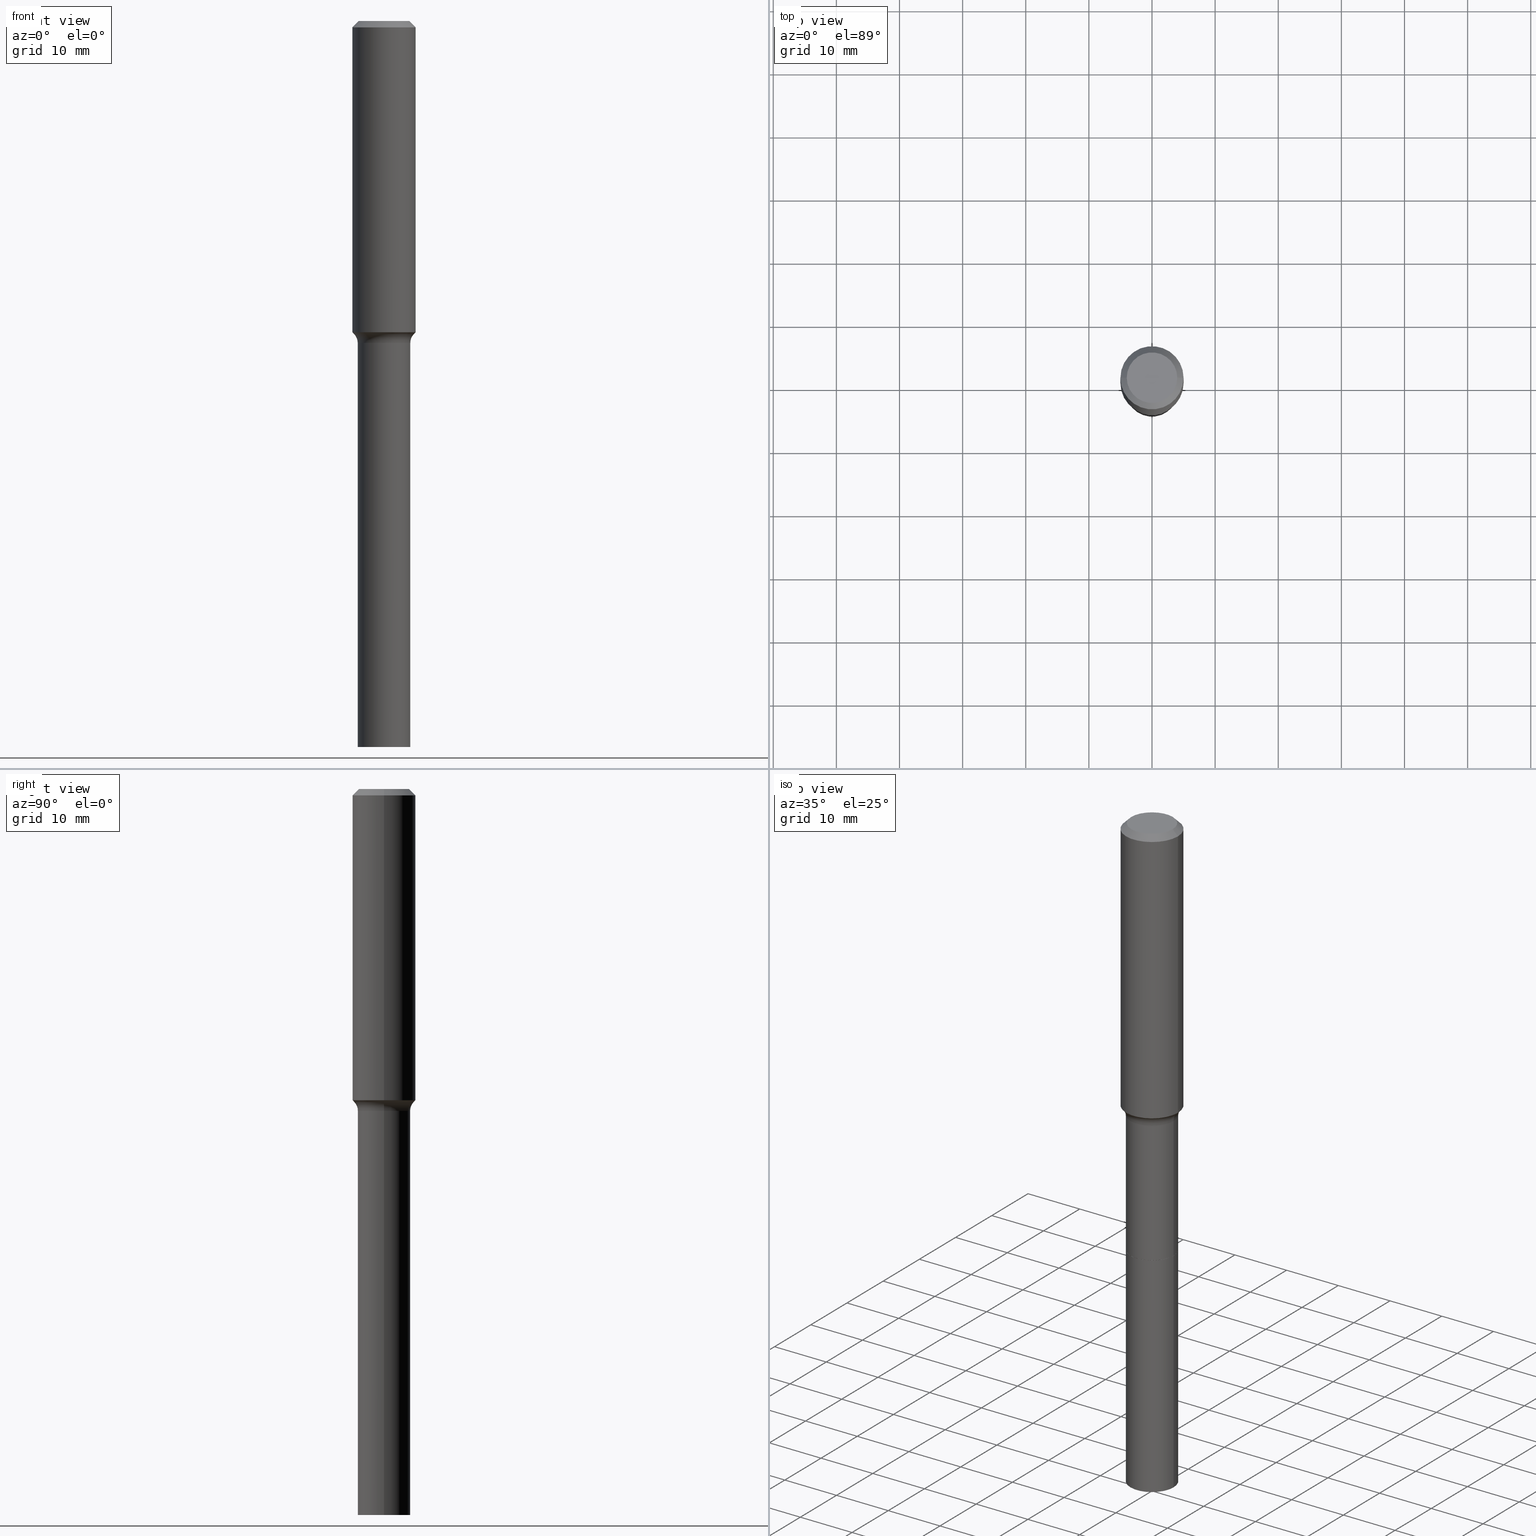
[diagram: canonical four-view strip — front | top / right | iso, engineering-drawing reading convention]
A machine part, canonical four-view strip (front | top / right | iso — engineering-drawing reading convention). The complete STEP part file that produces these views, byte-faithful:
ISO-10303-21;
HEADER;
FILE_DESCRIPTION (( 'STEP AP203' ),
    '1' );
FILE_NAME ('58896.STEP',
    '2025-04-01T15:26:35',
    ( '' ),
    ( '' ),
    'SwSTEP 2.0',
    'SolidWorks 2024',
    '' );
FILE_SCHEMA (( 'CONFIG_CONTROL_DESIGN' ));
ENDSEC;

DATA;
#1 = AXIS2_PLACEMENT_3D ( 'NONE', #466, #429, #71 ) ;
#2 = CIRCLE ( 'NONE', #98, 0.1635500000000000009 ) ;
#3 = CARTESIAN_POINT ( 'NONE',  ( 0.1635500000000000009, -1.138467320156584066E-14, -2.933599999999999763 ) ) ;
#4 = ORIENTED_EDGE ( 'NONE', *, *, #410, .F. ) ;
#5 = MANIFOLD_SOLID_BREP ( 'Body-Move/Copy2[1]', #420 ) ;
#6 = VERTEX_POINT ( 'NONE', #221 ) ;
#7 = ORIENTED_EDGE ( 'NONE', *, *, #445, .T. ) ;
#8 = EDGE_CURVE ( 'NONE', #479, #458, #22, .T. ) ;
#9 = PERSON_AND_ORGANIZATION_ROLE ( 'design_supplier' ) ;
#10 = LINE ( 'NONE', #417, #137 ) ;
#11 = VERTEX_POINT ( 'NONE', #298 ) ;
#12 = DATE_AND_TIME ( #270, #163 ) ;
#13 = CARTESIAN_POINT ( 'NONE',  ( -0.1968500000000002470, -5.377959779402321474E-15, -1.940913468261994179 ) ) ;
#14 = ORIENTED_EDGE ( 'NONE', *, *, #243, .T. ) ;
#15 = DATE_AND_TIME ( #218, #40 ) ;
#16 = DIRECTION ( 'NONE',  ( -2.445468806185136877E-29, 3.491481338843145188E-15, 1.000000000000000000 ) ) ;
#17 = DIRECTION ( 'NONE',  ( 2.438088387897960049E-29, -3.491481338843145188E-15, -1.000000000000000000 ) ) ;
#18 = APPROVAL_STATUS ( 'not_yet_approved' ) ;
#19 = CARTESIAN_POINT ( 'NONE',  ( 4.776098718065098064E-29, -6.819003172079109170E-15, -1.953040131194999418 ) ) ;
#20 = VERTEX_POINT ( 'NONE', #373 ) ;
#21 = CARTESIAN_POINT ( 'NONE',  ( 0.1640500000000000014, -1.138816468290468366E-14, -2.933599999999999763 ) ) ;
#22 = LINE ( 'NONE', #101, #97 ) ;
#23 = CARTESIAN_POINT ( 'NONE',  ( -0.1855417038704660349, -5.500650073421995719E-15, -1.953040131194999418 ) ) ;
#24 = ADVANCED_FACE ( 'NONE', ( #415 ), #375, .T. ) ;
#25 = PLANE ( 'NONE',  #124 ) ;
#26 = AXIS2_PLACEMENT_3D ( 'NONE', #302, #17, #139 ) ;
#27 = AXIS2_PLACEMENT_3D ( 'NONE', #267, #227, #378 ) ;
#28 = APPROVAL_PERSON_ORGANIZATION ( #341, #60, #266 ) ;
#29 = DIRECTION ( 'NONE',  ( 1.000000000000000000, -6.982962677686267499E-15, 0.000000000000000000 ) ) ;
#30 = ADVANCED_BREP_SHAPE_REPRESENTATION ( '58896', ( #5, #182, #363 ), #156 ) ;
#31 = FACE_OUTER_BOUND ( 'NONE', #452, .T. ) ;
#32 = FACE_OUTER_BOUND ( 'NONE', #292, .T. ) ;
#33 =( LENGTH_UNIT ( ) NAMED_UNIT ( * ) SI_UNIT ( $, .METRE. ) );
#34 = CARTESIAN_POINT ( 'NONE',  ( 0.1640500000000000014, -1.145555027274432057E-15, 7.999368000693231542E-30 ) ) ;
#35 = DIRECTION ( 'NONE',  ( 1.000000000000000000, -6.982962677686267499E-15, 0.000000000000000000 ) ) ;
#36 = CYLINDRICAL_SURFACE ( 'NONE', #287, 0.1968500000000001082 ) ;
#37 = PERSON_AND_ORGANIZATION ( #268, #295 ) ;
#38 = AXIS2_PLACEMENT_3D ( 'NONE', #515, #240, #279 ) ;
#39 = DIRECTION ( 'NONE',  ( 1.000000000000000000, -6.982962677686269866E-15, 4.883557194083114583E-29 ) ) ;
#40 = LOCAL_TIME ( 11, 26, 35.00000000000000000, #299 ) ;
#41 = FACE_OUTER_BOUND ( 'NONE', #94, .T. ) ;
#42 = ORIENTED_EDGE ( 'NONE', *, *, #160, .T. ) ;
#43 = ORIENTED_EDGE ( 'NONE', *, *, #410, .T. ) ;
#44 = CALENDAR_DATE ( 2025, 1, 4 ) ;
#45 = AXIS2_PLACEMENT_3D ( 'NONE', #497, #306, #63 ) ;
#46 = ORIENTED_EDGE ( 'NONE', *, *, #82, .F. ) ;
#47 = ADVANCED_FACE ( 'NONE', ( #305 ), #58, .T. ) ;
#48 = ORIENTED_EDGE ( 'NONE', *, *, #432, .T. ) ;
#49 = ADVANCED_FACE ( 'NONE', ( #491 ), #135, .T. ) ;
#50 = ORIENTED_EDGE ( 'NONE', *, *, #513, .T. ) ;
#51 = AXIS2_PLACEMENT_3D ( 'NONE', #76, #67, #235 ) ;
#52 = LOCAL_TIME ( 11, 26, 35.00000000000000000, #74 ) ;
#53 = ORIENTED_EDGE ( 'NONE', *, *, #122, .F. ) ;
#54 = PERSON_AND_ORGANIZATION ( #268, #295 ) ;
#55 = DIRECTION ( 'NONE',  ( -2.445468806185136597E-29, 3.491481338843145583E-15, 1.000000000000000000 ) ) ;
#56 = ORIENTED_EDGE ( 'NONE', *, *, #202, .T. ) ;
#57 = DIRECTION ( 'NONE',  ( 0.7071067811865450192, -7.319954787623246579E-15, -0.7071067811865500152 ) ) ;
#58 = CYLINDRICAL_SURFACE ( 'NONE', #247, 0.1640500000000000014 ) ;
#59 = DIRECTION ( 'NONE',  ( 1.000000000000000000, -6.982962677686266711E-15, 4.876176775795935232E-29 ) ) ;
#60 = APPROVAL ( #489, 'UNSPECIFIED' ) ;
#61 = EDGE_LOOP ( 'NONE', ( #441, #208, #422, #226 ) ) ;
#62 = APPROVAL_PERSON_ORGANIZATION ( #37, #70, #129 ) ;
#63 = DIRECTION ( 'NONE',  ( 1.000000000000000000, -6.982962677686281699E-15, 0.000000000000000000 ) ) ;
#64 = ORIENTED_EDGE ( 'NONE', *, *, #471, .F. ) ;
#65 = ADVANCED_FACE ( 'NONE', ( #461 ), #319, .T. ) ;
#66 = ADVANCED_FACE ( 'NONE', ( #392 ), #350, .T. ) ;
#67 = DIRECTION ( 'NONE',  ( -2.445468806185136597E-29, 3.491481338843145583E-15, 1.000000000000000000 ) ) ;
#68 = FACE_OUTER_BOUND ( 'NONE', #106, .T. ) ;
#69 = CIRCLE ( 'NONE', #386, 0.1968500000000000250 ) ;
#70 = APPROVAL ( #85, 'UNSPECIFIED' ) ;
#71 = DIRECTION ( 'NONE',  ( 1.000000000000000000, -6.982962677686269077E-15, 0.000000000000000000 ) ) ;
#72 = CARTESIAN_POINT ( 'NONE',  ( -0.2440499999999998781, -5.275418389238973593E-15, -2.007599999999999607 ) ) ;
#73 = CARTESIAN_POINT ( 'NONE',  ( 0.1640500000000000014, -1.695358593702065635E-14, -4.527599999999999625 ) ) ;
#74 = COORDINATED_UNIVERSAL_TIME_OFFSET ( 5, 0, .BEHIND. ) ;
#75 = DIRECTION ( 'NONE',  ( -2.445468806185136597E-29, 3.491481338843145583E-15, 1.000000000000000000 ) ) ;
#76 = CARTESIAN_POINT ( 'NONE',  ( 1.107210456688382298E-28, -1.580803090974622389E-14, -4.527599999999999625 ) ) ;
#77 = ADVANCED_FACE ( 'NONE', ( #32 ), #368, .F. ) ;
#78 = MECHANICAL_CONTEXT ( 'NONE', #117, 'mechanical' ) ;
#79 = CIRCLE ( 'NONE', #476, 0.1968500000000000250 ) ;
#80 = VECTOR ( 'NONE', #393, 39.37007874015748143 ) ;
#81 = EDGE_LOOP ( 'NONE', ( #367, #265 ) ) ;
#82 = EDGE_CURVE ( 'NONE', #293, #126, #360, .T. ) ;
#83 = APPLICATION_PROTOCOL_DEFINITION ( 'international standard', 'config_control_design', 1994, #117 ) ;
#84 = EDGE_LOOP ( 'NONE', ( #90, #307, #488, #164 ) ) ;
#85 = APPROVAL_STATUS ( 'not_yet_approved' ) ;
#86 = PRODUCT_DEFINITION_SHAPE ( 'NONE', 'NONE',  #478 ) ;
#87 = EDGE_LOOP ( 'NONE', ( #485, #383, #4, #92 ) ) ;
#88 = AXIS2_PLACEMENT_3D ( 'NONE', #72, #431, #113 ) ;
#89 = ADVANCED_FACE ( 'NONE', ( #472 ), #355, .F. ) ;
#90 = ORIENTED_EDGE ( 'NONE', *, *, #434, .F. ) ;
#91 = PERSON_AND_ORGANIZATION ( #268, #295 ) ;
#92 = ORIENTED_EDGE ( 'NONE', *, *, #398, .F. ) ;
#93 = CALENDAR_DATE ( 2025, 1, 4 ) ;
#94 = EDGE_LOOP ( 'NONE', ( #309, #56, #339, #103 ) ) ;
#95 = CC_DESIGN_DATE_AND_TIME_ASSIGNMENT ( #407, #297, ( #478 ) ) ;
#96 = DIRECTION ( 'NONE',  ( -2.445468806185136597E-29, 3.491481338843145583E-15, 1.000000000000000000 ) ) ;
#97 = VECTOR ( 'NONE', #132, 39.37007874015748143 ) ;
#98 = AXIS2_PLACEMENT_3D ( 'NONE', #195, #318, #153 ) ;
#99 = DIRECTION ( 'NONE',  ( -2.445468806185136597E-29, 3.491481338843145583E-15, 1.000000000000000000 ) ) ;
#100 = DIRECTION ( 'NONE',  ( -2.445468806185136597E-29, 3.491481338843145583E-15, 1.000000000000000000 ) ) ;
#101 = CARTESIAN_POINT ( 'NONE',  ( 0.1968500000000001082, -1.374596203102542397E-15, 9.598753983154305062E-30 ) ) ;
#102 = CARTESIAN_POINT ( 'NONE',  ( 0.1635500000000000009, -1.138467320156584066E-14, -2.933599999999999763 ) ) ;
#103 = ORIENTED_EDGE ( 'NONE', *, *, #143, .F. ) ;
#104 = CARTESIAN_POINT ( 'NONE',  ( 4.776098718065098064E-29, -6.819003172079109170E-15, -1.953040131194999418 ) ) ;
#105 = EDGE_CURVE ( 'NONE', #11, #290, #281, .T. ) ;
#106 = EDGE_LOOP ( 'NONE', ( #161, #48, #127, #444 ) ) ;
#107 = CC_DESIGN_APPROVAL ( #425, ( #359 ) ) ;
#108 = DIRECTION ( 'NONE',  ( 1.000000000000000000, -6.982962677686270655E-15, 0.000000000000000000 ) ) ;
#109 = DIRECTION ( 'NONE',  ( 2.445468806185136597E-29, -3.491481338843145583E-15, -1.000000000000000000 ) ) ;
#110 = DIRECTION ( 'NONE',  ( -2.445468806185136597E-29, 3.491481338843145583E-15, 1.000000000000000000 ) ) ;
#111 = DESIGN_CONTEXT ( 'detailed design', #413, 'design' ) ;
#112 = DIRECTION ( 'NONE',  ( -2.445468806185136877E-29, 3.491481338843145188E-15, 1.000000000000000000 ) ) ;
#113 = DIRECTION ( 'NONE',  ( -1.000000000000000000, 7.105427357601008170E-15, 0.000000000000000000 ) ) ;
#114 = DIRECTION ( 'NONE',  ( -1.000000000000000000, 6.982962677686265922E-15, -4.876176775795935793E-29 ) ) ;
#115 = VECTOR ( 'NONE', #382, 39.37007874015748143 ) ;
#116 = CIRCLE ( 'NONE', #179, 0.1855417038704660349 ) ;
#117 = APPLICATION_CONTEXT ( 'configuration controlled 3d designs of mechanical parts and assemblies' ) ;
#118 = LINE ( 'NONE', #158, #228 ) ;
#119 = CARTESIAN_POINT ( 'NONE',  ( 4.909523175297278955E-29, -7.009497935861498019E-15, -2.007599999999999607 ) ) ;
#120 = CC_DESIGN_PERSON_AND_ORGANIZATION_ASSIGNMENT ( #377, #416, ( #359 ) ) ;
#121 = DIRECTION ( 'NONE',  ( 1.000000000000000000, -6.982962677686272233E-15, 0.000000000000000000 ) ) ;
#122 = EDGE_CURVE ( 'NONE', #293, #11, #190, .T. ) ;
#123 = ADVANCED_FACE ( 'NONE', ( #317 ), #507, .F. ) ;
#124 = AXIS2_PLACEMENT_3D ( 'NONE', #192, #150, #315 ) ;
#125 = VECTOR ( 'NONE', #57, 39.37007874015748143 ) ;
#126 = VERTEX_POINT ( 'NONE', #503 ) ;
#127 = ORIENTED_EDGE ( 'NONE', *, *, #487, .T. ) ;
#128 = ORIENTED_EDGE ( 'NONE', *, *, #283, .T. ) ;
#129 = APPROVAL_ROLE ( '' ) ;
#130 = AXIS2_PLACEMENT_3D ( 'NONE', #231, #335, #271 ) ;
#131 = AXIS2_PLACEMENT_3D ( 'NONE', #511, #286, #39 ) ;
#132 = DIRECTION ( 'NONE',  ( -2.445468806185136877E-29, 3.491481338843145188E-15, 1.000000000000000000 ) ) ;
#133 = APPROVAL_DATE_TIME ( #12, #60 ) ;
#134 = CYLINDRICAL_SURFACE ( 'NONE', #403, 0.1640500000000000014 ) ;
#135 = CYLINDRICAL_SURFACE ( 'NONE', #272, 0.1640500000000000014 ) ;
#136 = DIRECTION ( 'NONE',  ( 1.000000000000000000, -6.982962677686265922E-15, 0.000000000000000000 ) ) ;
#137 = VECTOR ( 'NONE', #16, 39.37007874015748143 ) ;
#138 = CIRCLE ( 'NONE', #88, 0.08000000000000002942 ) ;
#139 = DIRECTION ( 'NONE',  ( -1.000000000000000000, 6.982962677686265922E-15, -4.876176775795935793E-29 ) ) ;
#140 = DIRECTION ( 'NONE',  ( -2.445468806185136877E-29, 3.491481338843145188E-15, 1.000000000000000000 ) ) ;
#141 = ORIENTED_EDGE ( 'NONE', *, *, #506, .T. ) ;
#142 = DATE_TIME_ROLE ( 'classification_date' ) ;
#143 = EDGE_CURVE ( 'NONE', #274, #458, #79, .T. ) ;
#144 = DIRECTION ( 'NONE',  ( 1.000000000000000000, -6.982962677686269866E-15, 0.000000000000000000 ) ) ;
#145 = EDGE_CURVE ( 'NONE', #344, #274, #321, .T. ) ;
#146 = EDGE_LOOP ( 'NONE', ( #346, #366, #223, #480 ) ) ;
#147 = DIRECTION ( 'NONE',  ( 1.000000000000000000, -6.982962677686266711E-15, 4.876176775795935232E-29 ) ) ;
#148 = CONICAL_SURFACE ( 'NONE', #169, 0.1855417038704660349, 0.7504915783575812904 ) ;
#149 = DIRECTION ( 'NONE',  ( 0.000000000000000000, 0.000000000000000000, 1.000000000000000000 ) ) ;
#150 = DIRECTION ( 'NONE',  ( 2.438088387897960049E-29, -3.491481338843145188E-15, -1.000000000000000000 ) ) ;
#151 = CYLINDRICAL_SURFACE ( 'NONE', #325, 0.1968500000000001082 ) ;
#152 = DIRECTION ( 'NONE',  ( -2.445468806185136877E-29, 3.491481338843145188E-15, 1.000000000000000000 ) ) ;
#153 = DIRECTION ( 'NONE',  ( 1.000000000000000000, -6.982962677686272233E-15, 0.000000000000000000 ) ) ;
#154 = DIRECTION ( 'NONE',  ( 2.438088387897960049E-29, -3.491481338843145188E-15, -1.000000000000000000 ) ) ;
#155 = AXIS2_PLACEMENT_3D ( 'NONE', #512, #468, #121 ) ;
#156 =( GEOMETRIC_REPRESENTATION_CONTEXT ( 3 ) GLOBAL_UNCERTAINTY_ASSIGNED_CONTEXT ( ( #343 ) ) GLOBAL_UNIT_ASSIGNED_CONTEXT ( ( #361, #387, #469 ) ) REPRESENTATION_CONTEXT ( 'NONE', 'WORKASPACE' ) );
#157 = CC_DESIGN_PERSON_AND_ORGANIZATION_ASSIGNMENT ( #401, #473, ( #462 ) ) ;
#158 = CARTESIAN_POINT ( 'NONE',  ( 0.1855417038704660349, -8.114633965360891989E-15, -1.953040131194999418 ) ) ;
#159 = ADVANCED_FACE ( 'NONE', ( #397 ), #494, .T. ) ;
#160 = EDGE_CURVE ( 'NONE', #170, #479, #118, .T. ) ;
#161 = ORIENTED_EDGE ( 'NONE', *, *, #453, .F. ) ;
#162 = CIRCLE ( 'NONE', #130, 0.1574800000000000089 ) ;
#163 = LOCAL_TIME ( 11, 26, 35.00000000000000000, #224 ) ;
#164 = ORIENTED_EDGE ( 'NONE', *, *, #277, .F. ) ;
#165 = PERSON_AND_ORGANIZATION_ROLE ( 'creator' ) ;
#166 = EDGE_LOOP ( 'NONE', ( #212, #400 ) ) ;
#167 = DIRECTION ( 'NONE',  ( 1.000000000000000000, -6.982962677686269866E-15, 0.000000000000000000 ) ) ;
#168 = AXIS2_PLACEMENT_3D ( 'NONE', #352, #196, #313 ) ;
#169 = AXIS2_PLACEMENT_3D ( 'NONE', #19, #275, #414 ) ;
#170 = VERTEX_POINT ( 'NONE', #284 ) ;
#171 = CARTESIAN_POINT ( 'NONE',  ( -0.1968500000000000250, 1.237136582792286225E-15, -0.03937000000000027977 ) ) ;
#172 = VERTEX_POINT ( 'NONE', #73 ) ;
#173 = DATE_AND_TIME ( #93, #450 ) ;
#174 = LINE ( 'NONE', #493, #125 ) ;
#175 = VERTEX_POINT ( 'NONE', #394 ) ;
#176 = SHAPE_DEFINITION_REPRESENTATION ( #86, #30 ) ;
#177 = CARTESIAN_POINT ( 'NONE',  ( 0.1640500000000000014, -1.138816468290468366E-14, -2.933599999999999763 ) ) ;
#178 = CLOSED_SHELL ( 'NONE', ( #159, #65, #233, #381, #470, #324, #49, #77, #330, #181, #312, #201, #123, #66 ) ) ;
#179 = AXIS2_PLACEMENT_3D ( 'NONE', #104, #356, #426 ) ;
#180 = ORIENTED_EDGE ( 'NONE', *, *, #202, .F. ) ;
#181 = ADVANCED_FACE ( 'NONE', ( #41 ), #36, .T. ) ;
#182 = MANIFOLD_SOLID_BREP ( 'Body-Move/Copy2[2]', #178 ) ;
#183 = APPROVAL_ROLE ( '' ) ;
#184 = DIRECTION ( 'NONE',  ( 1.000000000000000000, -6.982962677686269866E-15, 0.000000000000000000 ) ) ;
#185 = ORIENTED_EDGE ( 'NONE', *, *, #453, .T. ) ;
#186 = CARTESIAN_POINT ( 'NONE',  ( 0.000000000000000000, 0.000000000000000000, 0.000000000000000000 ) ) ;
#187 = ORIENTED_EDGE ( 'NONE', *, *, #105, .F. ) ;
#188 = CARTESIAN_POINT ( 'NONE',  ( 0.000000000000000000, 0.000000000000000000, 0.000000000000000000 ) ) ;
#189 = EDGE_CURVE ( 'NONE', #406, #172, #294, .T. ) ;
#190 = CIRCLE ( 'NONE', #1, 0.1640500000000000291 ) ;
#191 = AXIS2_PLACEMENT_3D ( 'NONE', #248, #205, #439 ) ;
#192 = CARTESIAN_POINT ( 'NONE',  ( -4.713871149261283817E-47, 6.730158695841841775E-33, 1.927594061857935365E-18 ) ) ;
#193 = DIRECTION ( 'NONE',  ( -2.445468806185136597E-29, 3.491481338843145583E-15, 1.000000000000000000 ) ) ;
#194 = CARTESIAN_POINT ( 'NONE',  ( 9.627810689950950651E-31, -1.374596203102556054E-16, -0.03937000000000027977 ) ) ;
#195 = CARTESIAN_POINT ( 'NONE',  ( 7.174027289824715126E-29, -1.024260965563025121E-14, -2.933599999999999763 ) ) ;
#196 = DIRECTION ( 'NONE',  ( -2.445468806185136597E-29, 3.491481338843145583E-15, 1.000000000000000000 ) ) ;
#197 = DIRECTION ( 'NONE',  ( -2.445468806185136597E-29, 3.491481338843145583E-15, 1.000000000000000000 ) ) ;
#198 = CARTESIAN_POINT ( 'NONE',  ( 0.000000000000000000, 0.000000000000000000, 0.000000000000000000 ) ) ;
#199 = AXIS2_PLACEMENT_3D ( 'NONE', #304, #55, #423 ) ;
#200 = TOROIDAL_SURFACE ( 'NONE', #131, 0.2440499999999998781, 0.08000000000000007105 ) ;
#201 = ADVANCED_FACE ( 'NONE', ( #385 ), #25, .F. ) ;
#202 = EDGE_CURVE ( 'NONE', #344, #479, #258, .T. ) ;
#203 = LINE ( 'NONE', #316, #288 ) ;
#204 = CARTESIAN_POINT ( 'NONE',  ( -0.1640500000000000014, 1.165645358014444365E-15, -8.069513015563172164E-30 ) ) ;
#205 = DIRECTION ( 'NONE',  ( -2.445468806185136597E-29, 3.491481338843145583E-15, 1.000000000000000000 ) ) ;
#206 = LINE ( 'NONE', #3, #459 ) ;
#207 = ORIENTED_EDGE ( 'NONE', *, *, #432, .F. ) ;
#208 = ORIENTED_EDGE ( 'NONE', *, *, #243, .F. ) ;
#209 = VECTOR ( 'NONE', #152, 39.37007874015748143 ) ;
#210 = CIRCLE ( 'NONE', #280, 0.1855417038704660349 ) ;
#211 = EDGE_LOOP ( 'NONE', ( #64, #185, #42, #180 ) ) ;
#212 = ORIENTED_EDGE ( 'NONE', *, *, #513, .F. ) ;
#213 = PRODUCT_RELATED_PRODUCT_CATEGORY ( 'detail', '', ( #462 ) ) ;
#214 = COORDINATED_UNIVERSAL_TIME_OFFSET ( 5, 0, .BEHIND. ) ;
#215 = ORIENTED_EDGE ( 'NONE', *, *, #105, .T. ) ;
#216 = EDGE_CURVE ( 'NONE', #402, #11, #206, .T. ) ;
#217 = AXIS2_PLACEMENT_3D ( 'NONE', #427, #154, #114 ) ;
#218 = CALENDAR_DATE ( 2025, 1, 4 ) ;
#219 = EDGE_CURVE ( 'NONE', #172, #406, #409, .T. ) ;
#220 = AXIS2_PLACEMENT_3D ( 'NONE', #119, #110, #29 ) ;
#221 = CARTESIAN_POINT ( 'NONE',  ( -0.1574800000000000089, 1.168406772637159618E-15, 3.855188123707939751E-18 ) ) ;
#222 = LINE ( 'NONE', #171, #115 ) ;
#223 = ORIENTED_EDGE ( 'NONE', *, *, #255, .F. ) ;
#224 = COORDINATED_UNIVERSAL_TIME_OFFSET ( 5, 0, .BEHIND. ) ;
#225 = FACE_OUTER_BOUND ( 'NONE', #146, .T. ) ;
#226 = ORIENTED_EDGE ( 'NONE', *, *, #143, .T. ) ;
#227 = DIRECTION ( 'NONE',  ( -2.445468806185136597E-29, 3.491481338843145583E-15, 1.000000000000000000 ) ) ;
#228 = VECTOR ( 'NONE', #244, 39.37007874015748143 ) ;
#229 = CIRCLE ( 'NONE', #239, 0.1640499999999999181 ) ;
#230 = ORIENTED_EDGE ( 'NONE', *, *, #122, .T. ) ;
#231 = CARTESIAN_POINT ( 'NONE',  ( -9.427742298522567634E-47, 1.346031739168368355E-32, 3.855188123715870730E-18 ) ) ;
#232 = ORIENTED_EDGE ( 'NONE', *, *, #216, .T. ) ;
#233 = ADVANCED_FACE ( 'NONE', ( #31 ), #151, .T. ) ;
#234 = CARTESIAN_POINT ( 'NONE',  ( -9.427742298522567634E-47, 1.346031739168368355E-32, 3.855188123715870730E-18 ) ) ;
#235 = DIRECTION ( 'NONE',  ( 1.000000000000000000, -6.982962677686270655E-15, 0.000000000000000000 ) ) ;
#236 = EDGE_CURVE ( 'NONE', #458, #274, #69, .T. ) ;
#237 = DIRECTION ( 'NONE',  ( -2.445468806185136597E-29, 3.491481338843145583E-15, 1.000000000000000000 ) ) ;
#238 = VECTOR ( 'NONE', #112, 39.37007874015748143 ) ;
#239 = AXIS2_PLACEMENT_3D ( 'NONE', #505, #75, #35 ) ;
#240 = DIRECTION ( 'NONE',  ( -2.438088387897960049E-29, 3.491481338843145188E-15, 1.000000000000000000 ) ) ;
#241 = DIRECTION ( 'NONE',  ( -2.445468806185136597E-29, 3.491481338843145583E-15, 1.000000000000000000 ) ) ;
#242 = DIRECTION ( 'NONE',  ( -0.7071067811864509833, 7.493145998870005484E-15, 0.7071067811866440511 ) ) ;
#243 = EDGE_CURVE ( 'NONE', #6, #501, #162, .T. ) ;
#244 = DIRECTION ( 'NONE',  ( 0.6819983600625127984, -2.208861293262621742E-15, 0.7313537016191571372 ) ) ;
#245 = CARTESIAN_POINT ( 'NONE',  ( 7.174027289824715126E-29, -1.024260965563025121E-14, -2.933599999999999763 ) ) ;
#246 = DIRECTION ( 'NONE',  ( -1.000000000000000000, 6.982962677686265922E-15, 0.000000000000000000 ) ) ;
#247 = AXIS2_PLACEMENT_3D ( 'NONE', #257, #370, #498 ) ;
#248 = CARTESIAN_POINT ( 'NONE',  ( 1.107210456688382298E-28, -1.580803090974622389E-14, -4.527599999999999625 ) ) ;
#249 = ORIENTED_EDGE ( 'NONE', *, *, #8, .F. ) ;
#250 = EDGE_LOOP ( 'NONE', ( #128, #251, #296, #187 ) ) ;
#251 = ORIENTED_EDGE ( 'NONE', *, *, #82, .T. ) ;
#252 = CIRCLE ( 'NONE', #199, 0.1640500000000000291 ) ;
#253 = VECTOR ( 'NONE', #140, 39.37007874015748143 ) ;
#254 = ORIENTED_EDGE ( 'NONE', *, *, #434, .T. ) ;
#255 = EDGE_CURVE ( 'NONE', #479, #344, #362, .T. ) ;
#256 = EDGE_CURVE ( 'NONE', #406, #175, #10, .T. ) ;
#257 = CARTESIAN_POINT ( 'NONE',  ( 7.174027289824715126E-29, -1.024260965563025121E-14, -2.933599999999999763 ) ) ;
#258 = CIRCLE ( 'NONE', #303, 0.1968500000000002470 ) ;
#259 = CIRCLE ( 'NONE', #467, 0.1640500000000000014 ) ;
#260 = CYLINDRICAL_SURFACE ( 'NONE', #496, 0.1640500000000000014 ) ;
#261 = ORIENTED_EDGE ( 'NONE', *, *, #445, .F. ) ;
#262 = COORDINATED_UNIVERSAL_TIME_OFFSET ( 5, 0, .BEHIND. ) ;
#263 = CC_DESIGN_DATE_AND_TIME_ASSIGNMENT ( #173, #142, ( #359 ) ) ;
#264 = CARTESIAN_POINT ( 'NONE',  ( 4.746443342139311740E-29, -6.776663154746080840E-15, -1.940913468261994179 ) ) ;
#265 = ORIENTED_EDGE ( 'NONE', *, *, #189, .F. ) ;
#266 = APPROVAL_ROLE ( '' ) ;
#267 = CARTESIAN_POINT ( 'NONE',  ( 7.174027289824715126E-29, -1.024260965563025121E-14, -2.933599999999999763 ) ) ;
#268 = PERSON ( 'UNSPECIFIED', 'UNSPECIFIED', 'UNSPECIFIED', ('UNSPECIFIED'), ('UNSPECIFIED'), ('UNSPECIFIED') ) ;
#269 = ORIENTED_EDGE ( 'NONE', *, *, #256, .F. ) ;
#270 = CALENDAR_DATE ( 2025, 1, 4 ) ;
#271 = DIRECTION ( 'NONE',  ( 1.000000000000000000, -6.982962677686265922E-15, 4.876223630392693006E-29 ) ) ;
#272 = AXIS2_PLACEMENT_3D ( 'NONE', #449, #99, #147 ) ;
#273 = APPROVAL_PERSON_ORGANIZATION ( #337, #425, #183 ) ;
#274 = VERTEX_POINT ( 'NONE', #490 ) ;
#275 = DIRECTION ( 'NONE',  ( -2.445468806185136597E-29, 3.491481338843145583E-15, 1.000000000000000000 ) ) ;
#276 = DIRECTION ( 'NONE',  ( -2.445468806185136597E-29, 3.491481338843145583E-15, 1.000000000000000000 ) ) ;
#277 = EDGE_CURVE ( 'NONE', #6, #274, #222, .T. ) ;
#278 = LENGTH_MEASURE_WITH_UNIT ( LENGTH_MEASURE( 0.02539999999999999897 ), #33 );
#279 = DIRECTION ( 'NONE',  ( 1.000000000000000000, -6.982962677686265922E-15, 4.876176775795935793E-29 ) ) ;
#280 = AXIS2_PLACEMENT_3D ( 'NONE', #314, #197, #463 ) ;
#281 = LINE ( 'NONE', #34, #238 ) ;
#282 = DIRECTION ( 'NONE',  ( 1.000000000000000000, -6.982962677686270655E-15, 0.000000000000000000 ) ) ;
#283 = EDGE_CURVE ( 'NONE', #11, #293, #252, .T. ) ;
#284 = CARTESIAN_POINT ( 'NONE',  ( 0.1855417038704662014, -8.114633965360891989E-15, -1.953040131194999418 ) ) ;
#285 = DIRECTION ( 'NONE',  ( 1.000000000000000000, -6.982962677686269866E-15, 4.883557194083114583E-29 ) ) ;
#286 = DIRECTION ( 'NONE',  ( -2.445468806185136597E-29, 3.491481338843145583E-15, 1.000000000000000000 ) ) ;
#287 = AXIS2_PLACEMENT_3D ( 'NONE', #198, #323, #433 ) ;
#288 = VECTOR ( 'NONE', #242, 39.37007874015748143 ) ;
#289 = VERTEX_POINT ( 'NONE', #21 ) ;
#290 = VERTEX_POINT ( 'NONE', #345 ) ;
#291 = DIRECTION ( 'NONE',  ( -2.445468806185136597E-29, 3.491481338843145583E-15, 1.000000000000000000 ) ) ;
#292 = EDGE_LOOP ( 'NONE', ( #207, #481, #336, #141 ) ) ;
#293 = VERTEX_POINT ( 'NONE', #502 ) ;
#294 = CIRCLE ( 'NONE', #51, 0.1640500000000000014 ) ;
#295 = ORGANIZATION ( 'UNSPECIFIED', 'UNSPECIFIED', '' ) ;
#296 = ORIENTED_EDGE ( 'NONE', *, *, #506, .F. ) ;
#297 = DATE_TIME_ROLE ( 'creation_date' ) ;
#298 = CARTESIAN_POINT ( 'NONE',  ( 0.1640500000000000291, -1.138641894223526137E-14, -2.933099999999999152 ) ) ;
#299 = COORDINATED_UNIVERSAL_TIME_OFFSET ( 5, 0, .BEHIND. ) ;
#300 = DIRECTION ( 'NONE',  ( 2.445468806185136597E-29, -3.491481338843145583E-15, -1.000000000000000000 ) ) ;
#301 = APPROVAL_DATE_TIME ( #516, #70 ) ;
#302 = CARTESIAN_POINT ( 'NONE',  ( 1.107210456688382298E-28, -1.580803090974622389E-14, -4.527599999999999625 ) ) ;
#303 = AXIS2_PLACEMENT_3D ( 'NONE', #464, #291, #167 ) ;
#304 = CARTESIAN_POINT ( 'NONE',  ( 7.172804555421622324E-29, -1.024086391496082892E-14, -2.933099999999999152 ) ) ;
#305 = FACE_OUTER_BOUND ( 'NONE', #87, .T. ) ;
#306 = DIRECTION ( 'NONE',  ( -6.982962677686266711E-15, -1.000000000000000000, 3.491481338843145583E-15 ) ) ;
#307 = ORIENTED_EDGE ( 'NONE', *, *, #380, .T. ) ;
#308 = CARTESIAN_POINT ( 'NONE',  ( 4.776098718065098064E-29, -6.819003172079109170E-15, -1.953040131194999418 ) ) ;
#309 = ORIENTED_EDGE ( 'NONE', *, *, #145, .F. ) ;
#310 = AXIS2_PLACEMENT_3D ( 'NONE', #372, #300, #447 ) ;
#311 = ADVANCED_FACE ( 'NONE', ( #338 ), #260, .T. ) ;
#312 = ADVANCED_FACE ( 'NONE', ( #451 ), #351, .T. ) ;
#313 = DIRECTION ( 'NONE',  ( 1.000000000000000000, -6.982962677686272233E-15, 0.000000000000000000 ) ) ;
#314 = CARTESIAN_POINT ( 'NONE',  ( 4.776098718065098064E-29, -6.819003172079109170E-15, -1.953040131194999418 ) ) ;
#315 = DIRECTION ( 'NONE',  ( -1.000000000000000000, 6.982962677686265922E-15, -4.876176775795935793E-29 ) ) ;
#316 = CARTESIAN_POINT ( 'NONE',  ( -0.1635500000000000009, -9.080517011294606761E-15, -2.933599999999999763 ) ) ;
#317 = FACE_OUTER_BOUND ( 'NONE', #166, .T. ) ;
#318 = DIRECTION ( 'NONE',  ( -2.445468806185136597E-29, 3.491481338843145583E-15, 1.000000000000000000 ) ) ;
#319 = CONICAL_SURFACE ( 'NONE', #448, 0.1968500000000000250, 0.7853981633974447263 ) ;
#320 = AXIS2_PLACEMENT_3D ( 'NONE', #308, #374, #144 ) ;
#321 = LINE ( 'NONE', #391, #331 ) ;
#322 = CARTESIAN_POINT ( 'NONE',  ( -0.1635500000000000009, -9.077867784120494771E-15, -2.933599999999999763 ) ) ;
#323 = DIRECTION ( 'NONE',  ( -2.445468806185136597E-29, 3.491481338843145583E-15, 1.000000000000000000 ) ) ;
#324 = ADVANCED_FACE ( 'NONE', ( #421 ), #134, .T. ) ;
#325 = AXIS2_PLACEMENT_3D ( 'NONE', #390, #193, #354 ) ;
#326 = EDGE_LOOP ( 'NONE', ( #14, #254 ) ) ;
#327 = ORIENTED_EDGE ( 'NONE', *, *, #145, .T. ) ;
#328 = ORIENTED_EDGE ( 'NONE', *, *, #283, .F. ) ;
#329 = APPLICATION_PROTOCOL_DEFINITION ( 'international standard', 'config_control_design', 1994, #413 ) ;
#330 = ADVANCED_FACE ( 'NONE', ( #411 ), #148, .T. ) ;
#331 = VECTOR ( 'NONE', #357, 39.37007874015748143 ) ;
#332 = CIRCLE ( 'NONE', #437, 0.1635500000000000009 ) ;
#333 = DIMENSIONAL_EXPONENTS ( 1.000000000000000000, 0.000000000000000000, 0.000000000000000000, 0.000000000000000000, 0.000000000000000000, 0.000000000000000000, 0.000000000000000000 ) ;
#334 = ORIENTED_EDGE ( 'NONE', *, *, #486, .T. ) ;
#335 = DIRECTION ( 'NONE',  ( -2.445468806185136597E-29, 3.491481338843145583E-15, 1.000000000000000000 ) ) ;
#336 = ORIENTED_EDGE ( 'NONE', *, *, #399, .T. ) ;
#337 = PERSON_AND_ORGANIZATION ( #268, #295 ) ;
#338 = FACE_OUTER_BOUND ( 'NONE', #364, .T. ) ;
#339 = ORIENTED_EDGE ( 'NONE', *, *, #8, .T. ) ;
#340 = CIRCLE ( 'NONE', #220, 0.1640499999999999181 ) ;
#341 = PERSON_AND_ORGANIZATION ( #268, #295 ) ;
#342 = LINE ( 'NONE', #177, #253 ) ;
#343 = UNCERTAINTY_MEASURE_WITH_UNIT (LENGTH_MEASURE( 1.000000000000000082E-05 ), #361, 'distance_accuracy_value', 'NONE');
#344 = VERTEX_POINT ( 'NONE', #13 ) ;
#345 = CARTESIAN_POINT ( 'NONE',  ( 0.1640499999999999181, -8.155052963135929682E-15, -2.007599999999999607 ) ) ;
#346 = ORIENTED_EDGE ( 'NONE', *, *, #418, .T. ) ;
#347 = DIRECTION ( 'NONE',  ( -2.445468806185136597E-29, 3.491481338843145583E-15, 1.000000000000000000 ) ) ;
#348 = ORIENTED_EDGE ( 'NONE', *, *, #255, .T. ) ;
#349 = CARTESIAN_POINT ( 'NONE',  ( 0.1968500000000002470, -8.151259357848624026E-15, -1.940913468261994179 ) ) ;
#350 = CONICAL_SURFACE ( 'NONE', #168, 0.1635500000000000009, 0.7853981633973118326 ) ;
#351 = CONICAL_SURFACE ( 'NONE', #310, 0.1968500000000000250, 0.7853981633974447263 ) ;
#352 = CARTESIAN_POINT ( 'NONE',  ( 7.174027289824715126E-29, -1.024260965563025121E-14, -2.933599999999999763 ) ) ;
#353 = CARTESIAN_POINT ( 'NONE',  ( 0.1574800000000000089, -1.284169937930321189E-15, 3.855188123724205385E-18 ) ) ;
#354 = DIRECTION ( 'NONE',  ( 1.000000000000000000, -6.982962677686266711E-15, 4.876176775795935793E-29 ) ) ;
#355 = PLANE ( 'NONE',  #217 ) ;
#356 = DIRECTION ( 'NONE',  ( -2.445468806185136597E-29, 3.491481338843145583E-15, 1.000000000000000000 ) ) ;
#357 = DIRECTION ( 'NONE',  ( -2.445468806185136877E-29, 3.491481338843145188E-15, 1.000000000000000000 ) ) ;
#358 = CARTESIAN_POINT ( 'NONE',  ( 7.174027289824715126E-29, -1.024260965563025121E-14, -2.933599999999999763 ) ) ;
#359 = SECURITY_CLASSIFICATION ( '', '', #446 ) ;
#360 = LINE ( 'NONE', #204, #209 ) ;
#361 =( CONVERSION_BASED_UNIT ( 'INCH', #278 ) LENGTH_UNIT ( ) NAMED_UNIT ( #333 ) );
#362 = CIRCLE ( 'NONE', #483, 0.1968500000000002470 ) ;
#363 = AXIS2_PLACEMENT_3D ( 'NONE', #188, #149, #475 ) ;
#364 = EDGE_LOOP ( 'NONE', ( #269, #440, #404, #455 ) ) ;
#365 = DIRECTION ( 'NONE',  ( 0.7071067811864509833, -2.468850131081245741E-15, 0.7071067811866440511 ) ) ;
#366 = ORIENTED_EDGE ( 'NONE', *, *, #471, .T. ) ;
#367 = ORIENTED_EDGE ( 'NONE', *, *, #219, .F. ) ;
#368 = TOROIDAL_SURFACE ( 'NONE', #436, 0.2440499999999998781, 0.08000000000000007105 ) ;
#369 = CIRCLE ( 'NONE', #45, 0.08000000000000002942 ) ;
#370 = DIRECTION ( 'NONE',  ( -2.445468806185136597E-29, 3.491481338843145583E-15, 1.000000000000000000 ) ) ;
#371 = PERSON_AND_ORGANIZATION_ROLE ( 'creator' ) ;
#372 = CARTESIAN_POINT ( 'NONE',  ( 9.627810689950950651E-31, -1.374596203102556054E-16, -0.03937000000000027977 ) ) ;
#373 = CARTESIAN_POINT ( 'NONE',  ( -0.1855417038704662014, -5.500650073421994141E-15, -1.953040131194999418 ) ) ;
#374 = DIRECTION ( 'NONE',  ( -2.445468806185136597E-29, 3.491481338843145583E-15, 1.000000000000000000 ) ) ;
#375 = PLANE ( 'NONE',  #26 ) ;
#376 = AXIS2_PLACEMENT_3D ( 'NONE', #234, #237, #465 ) ;
#377 = PERSON_AND_ORGANIZATION ( #268, #295 ) ;
#378 = DIRECTION ( 'NONE',  ( 1.000000000000000000, -6.982962677686270655E-15, 0.000000000000000000 ) ) ;
#379 = EDGE_LOOP ( 'NONE', ( #46, #230, #215, #442 ) ) ;
#380 = EDGE_CURVE ( 'NONE', #501, #458, #174, .T. ) ;
#381 = ADVANCED_FACE ( 'NONE', ( #225 ), #514, .T. ) ;
#382 = DIRECTION ( 'NONE',  ( -0.7071067811865450192, 2.468850131082230634E-15, -0.7071067811865500152 ) ) ;
#383 = ORIENTED_EDGE ( 'NONE', *, *, #256, .T. ) ;
#384 = DIRECTION ( 'NONE',  ( -2.445468806185136597E-29, 3.491481338843145583E-15, 1.000000000000000000 ) ) ;
#385 = FACE_OUTER_BOUND ( 'NONE', #326, .T. ) ;
#386 = AXIS2_PLACEMENT_3D ( 'NONE', #509, #100, #136 ) ;
#387 =( NAMED_UNIT ( * ) PLANE_ANGLE_UNIT ( ) SI_UNIT ( $, .RADIAN. ) );
#388 = CIRCLE ( 'NONE', #27, 0.1640500000000000014 ) ;
#389 = CC_DESIGN_PERSON_AND_ORGANIZATION_ASSIGNMENT ( #499, #371, ( #477 ) ) ;
#390 = CARTESIAN_POINT ( 'NONE',  ( 0.000000000000000000, 0.000000000000000000, 0.000000000000000000 ) ) ;
#391 = CARTESIAN_POINT ( 'NONE',  ( -0.1968500000000001082, 1.398703375343757985E-15, -9.682923725166787881E-30 ) ) ;
#392 = FACE_OUTER_BOUND ( 'NONE', #438, .T. ) ;
#393 = DIRECTION ( 'NONE',  ( -0.6819983600625127984, 7.399397606724341796E-15, 0.7313537016191571372 ) ) ;
#394 = CARTESIAN_POINT ( 'NONE',  ( -0.1640500000000000014, -1.185967492467379220E-14, -2.933599999999999763 ) ) ;
#395 = DIRECTION ( 'NONE',  ( -2.445468806185136597E-29, 3.491481338843145583E-15, 1.000000000000000000 ) ) ;
#396 = CC_DESIGN_SECURITY_CLASSIFICATION ( #359, ( #477 ) ) ;
#397 = FACE_OUTER_BOUND ( 'NONE', #408, .T. ) ;
#398 = EDGE_CURVE ( 'NONE', #172, #289, #342, .T. ) ;
#399 = EDGE_CURVE ( 'NONE', #170, #290, #369, .T. ) ;
#400 = ORIENTED_EDGE ( 'NONE', *, *, #486, .F. ) ;
#401 = PERSON_AND_ORGANIZATION ( #268, #295 ) ;
#402 = VERTEX_POINT ( 'NONE', #102 ) ;
#403 = AXIS2_PLACEMENT_3D ( 'NONE', #186, #347, #59 ) ;
#404 = ORIENTED_EDGE ( 'NONE', *, *, #398, .T. ) ;
#405 = EDGE_LOOP ( 'NONE', ( #43, #412 ) ) ;
#406 = VERTEX_POINT ( 'NONE', #456 ) ;
#407 = DATE_AND_TIME ( #457, #504 ) ;
#408 = EDGE_LOOP ( 'NONE', ( #50, #7, #328, #518 ) ) ;
#409 = CIRCLE ( 'NONE', #191, 0.1640500000000000014 ) ;
#410 = EDGE_CURVE ( 'NONE', #289, #175, #388, .T. ) ;
#411 = FACE_OUTER_BOUND ( 'NONE', #211, .T. ) ;
#412 = ORIENTED_EDGE ( 'NONE', *, *, #443, .T. ) ;
#413 = APPLICATION_CONTEXT ( 'configuration controlled 3d designs of mechanical parts and assemblies' ) ;
#414 = DIRECTION ( 'NONE',  ( 1.000000000000000000, -6.982962677686269866E-15, 0.000000000000000000 ) ) ;
#415 = FACE_OUTER_BOUND ( 'NONE', #81, .T. ) ;
#416 = PERSON_AND_ORGANIZATION_ROLE ( 'classification_officer' ) ;
#417 = CARTESIAN_POINT ( 'NONE',  ( -0.1640500000000000014, -9.076964297615805074E-15, -2.933599999999999763 ) ) ;
#418 = EDGE_CURVE ( 'NONE', #170, #20, #116, .T. ) ;
#419 = VERTEX_POINT ( 'NONE', #322 ) ;
#420 = CLOSED_SHELL ( 'NONE', ( #47, #24, #311, #89 ) ) ;
#421 = FACE_OUTER_BOUND ( 'NONE', #250, .T. ) ;
#422 = ORIENTED_EDGE ( 'NONE', *, *, #277, .T. ) ;
#423 = DIRECTION ( 'NONE',  ( 1.000000000000000000, -6.982962677686269077E-15, 0.000000000000000000 ) ) ;
#424 = CARTESIAN_POINT ( 'NONE',  ( 9.627810689950950651E-31, -1.374596203102556054E-16, -0.03937000000000027977 ) ) ;
#425 = APPROVAL ( #18, 'UNSPECIFIED' ) ;
#426 = DIRECTION ( 'NONE',  ( 1.000000000000000000, -6.982962677686269866E-15, 0.000000000000000000 ) ) ;
#427 = CARTESIAN_POINT ( 'NONE',  ( 7.174027289824715126E-29, -1.024260965563025121E-14, -2.933599999999999763 ) ) ;
#428 = CIRCLE ( 'NONE', #376, 0.1574800000000000089 ) ;
#429 = DIRECTION ( 'NONE',  ( -2.445468806185136597E-29, 3.491481338843145583E-15, 1.000000000000000000 ) ) ;
#430 = DIRECTION ( 'NONE',  ( 1.000000000000000000, -6.982962677686265922E-15, 0.000000000000000000 ) ) ;
#431 = DIRECTION ( 'NONE',  ( 7.105427357601001859E-15, 1.000000000000000000, -3.491481338843145583E-15 ) ) ;
#432 = EDGE_CURVE ( 'NONE', #20, #126, #138, .T. ) ;
#433 = DIRECTION ( 'NONE',  ( 1.000000000000000000, -6.982962677686266711E-15, 4.876176775795935793E-29 ) ) ;
#434 = EDGE_CURVE ( 'NONE', #501, #6, #428, .T. ) ;
#435 = LINE ( 'NONE', #23, #80 ) ;
#436 = AXIS2_PLACEMENT_3D ( 'NONE', #510, #276, #285 ) ;
#437 = AXIS2_PLACEMENT_3D ( 'NONE', #358, #384, #474 ) ;
#438 = EDGE_LOOP ( 'NONE', ( #261, #334, #232, #53 ) ) ;
#439 = DIRECTION ( 'NONE',  ( 1.000000000000000000, -6.982962677686270655E-15, 0.000000000000000000 ) ) ;
#440 = ORIENTED_EDGE ( 'NONE', *, *, #189, .T. ) ;
#441 = ORIENTED_EDGE ( 'NONE', *, *, #380, .F. ) ;
#442 = ORIENTED_EDGE ( 'NONE', *, *, #487, .F. ) ;
#443 = EDGE_CURVE ( 'NONE', #175, #289, #259, .T. ) ;
#444 = ORIENTED_EDGE ( 'NONE', *, *, #399, .F. ) ;
#445 = EDGE_CURVE ( 'NONE', #419, #293, #203, .T. ) ;
#446 = SECURITY_CLASSIFICATION_LEVEL ( 'unclassified' ) ;
#447 = DIRECTION ( 'NONE',  ( -1.000000000000000000, 6.982962677686265922E-15, 0.000000000000000000 ) ) ;
#448 = AXIS2_PLACEMENT_3D ( 'NONE', #194, #109, #246 ) ;
#449 = CARTESIAN_POINT ( 'NONE',  ( 0.000000000000000000, 0.000000000000000000, 0.000000000000000000 ) ) ;
#450 = LOCAL_TIME ( 11, 26, 35.00000000000000000, #262 ) ;
#451 = FACE_OUTER_BOUND ( 'NONE', #61, .T. ) ;
#452 = EDGE_LOOP ( 'NONE', ( #348, #327, #495, #249 ) ) ;
#453 = EDGE_CURVE ( 'NONE', #20, #170, #210, .T. ) ;
#454 = CARTESIAN_POINT ( 'NONE',  ( 7.174027289824715126E-29, -1.024260965563025121E-14, -2.933599999999999763 ) ) ;
#455 = ORIENTED_EDGE ( 'NONE', *, *, #443, .F. ) ;
#456 = CARTESIAN_POINT ( 'NONE',  ( -0.1640500000000000014, -1.185967492467379220E-14, -4.527599999999999625 ) ) ;
#457 = CALENDAR_DATE ( 2025, 1, 4 ) ;
#458 = VERTEX_POINT ( 'NONE', #508 ) ;
#459 = VECTOR ( 'NONE', #365, 39.37007874015748143 ) ;
#460 = CC_DESIGN_APPROVAL ( #60, ( #477 ) ) ;
#461 = FACE_OUTER_BOUND ( 'NONE', #84, .T. ) ;
#462 = PRODUCT ( '58896', '58896', '', ( #78 ) ) ;
#463 = DIRECTION ( 'NONE',  ( 1.000000000000000000, -6.982962677686269866E-15, 0.000000000000000000 ) ) ;
#464 = CARTESIAN_POINT ( 'NONE',  ( 4.746443342139311740E-29, -6.776663154746080840E-15, -1.940913468261994179 ) ) ;
#465 = DIRECTION ( 'NONE',  ( 1.000000000000000000, -6.982962677686265922E-15, 4.876223630392693006E-29 ) ) ;
#466 = CARTESIAN_POINT ( 'NONE',  ( 7.172804555421622324E-29, -1.024086391496082892E-14, -2.933099999999999152 ) ) ;
#467 = AXIS2_PLACEMENT_3D ( 'NONE', #245, #395, #282 ) ;
#468 = DIRECTION ( 'NONE',  ( -2.445468806185136597E-29, 3.491481338843145583E-15, 1.000000000000000000 ) ) ;
#469 =( NAMED_UNIT ( * ) SI_UNIT ( $, .STERADIAN. ) SOLID_ANGLE_UNIT ( ) );
#470 = ADVANCED_FACE ( 'NONE', ( #68 ), #200, .F. ) ;
#471 = EDGE_CURVE ( 'NONE', #20, #344, #435, .T. ) ;
#472 = FACE_OUTER_BOUND ( 'NONE', #405, .T. ) ;
#473 = PERSON_AND_ORGANIZATION_ROLE ( 'design_owner' ) ;
#474 = DIRECTION ( 'NONE',  ( 1.000000000000000000, -6.982962677686272233E-15, 0.000000000000000000 ) ) ;
#475 = DIRECTION ( 'NONE',  ( 1.000000000000000000, 0.000000000000000000, 0.000000000000000000 ) ) ;
#476 = AXIS2_PLACEMENT_3D ( 'NONE', #424, #241, #430 ) ;
#477 = PRODUCT_DEFINITION_FORMATION_WITH_SPECIFIED_SOURCE ( 'ANY', '', #462, .NOT_KNOWN. ) ;
#478 = PRODUCT_DEFINITION ( 'UNKNOWN', '', #477, #111 ) ;
#479 = VERTEX_POINT ( 'NONE', #349 ) ;
#480 = ORIENTED_EDGE ( 'NONE', *, *, #160, .F. ) ;
#481 = ORIENTED_EDGE ( 'NONE', *, *, #418, .F. ) ;
#482 = CC_DESIGN_PERSON_AND_ORGANIZATION_ASSIGNMENT ( #91, #165, ( #478 ) ) ;
#483 = AXIS2_PLACEMENT_3D ( 'NONE', #264, #500, #184 ) ;
#484 = CC_DESIGN_APPROVAL ( #70, ( #478 ) ) ;
#485 = ORIENTED_EDGE ( 'NONE', *, *, #219, .T. ) ;
#486 = EDGE_CURVE ( 'NONE', #419, #402, #332, .T. ) ;
#487 = EDGE_CURVE ( 'NONE', #126, #290, #340, .T. ) ;
#488 = ORIENTED_EDGE ( 'NONE', *, *, #236, .T. ) ;
#489 = APPROVAL_STATUS ( 'not_yet_approved' ) ;
#490 = CARTESIAN_POINT ( 'NONE',  ( -0.1968500000000000250, -2.058358012184409634E-15, -0.03937000000000027977 ) ) ;
#491 = FACE_OUTER_BOUND ( 'NONE', #379, .T. ) ;
#492 = APPROVAL_DATE_TIME ( #15, #425 ) ;
#493 = CARTESIAN_POINT ( 'NONE',  ( 0.1968500000000000250, -1.487948651171581601E-15, -0.03937000000000027977 ) ) ;
#494 = CONICAL_SURFACE ( 'NONE', #155, 0.1635500000000000009, 0.7853981633973118326 ) ;
#495 = ORIENTED_EDGE ( 'NONE', *, *, #236, .F. ) ;
#496 = AXIS2_PLACEMENT_3D ( 'NONE', #454, #96, #108 ) ;
#497 = CARTESIAN_POINT ( 'NONE',  ( 0.2440499999999998781, -8.713689977350829757E-15, -2.007599999999999607 ) ) ;
#498 = DIRECTION ( 'NONE',  ( 1.000000000000000000, -6.982962677686270655E-15, 0.000000000000000000 ) ) ;
#499 = PERSON_AND_ORGANIZATION ( #268, #295 ) ;
#500 = DIRECTION ( 'NONE',  ( -2.445468806185136597E-29, 3.491481338843145583E-15, 1.000000000000000000 ) ) ;
#501 = VERTEX_POINT ( 'NONE', #353 ) ;
#502 = CARTESIAN_POINT ( 'NONE',  ( -0.1640500000000000291, -7.459535567396716936E-15, -2.933099999999999152 ) ) ;
#503 = CARTESIAN_POINT ( 'NONE',  ( -0.1640499999999999181, -7.459535567396718514E-15, -2.007599999999999607 ) ) ;
#504 = LOCAL_TIME ( 11, 26, 35.00000000000000000, #214 ) ;
#505 = CARTESIAN_POINT ( 'NONE',  ( 4.909523175297278955E-29, -7.009497935861498019E-15, -2.007599999999999607 ) ) ;
#506 = EDGE_CURVE ( 'NONE', #290, #126, #229, .T. ) ;
#507 = PLANE ( 'NONE',  #38 ) ;
#508 = CARTESIAN_POINT ( 'NONE',  ( 0.1968500000000000250, -1.512055823412797189E-15, -0.03937000000000027977 ) ) ;
#509 = CARTESIAN_POINT ( 'NONE',  ( 9.627810689950950651E-31, -1.374596203102556054E-16, -0.03937000000000027977 ) ) ;
#510 = CARTESIAN_POINT ( 'NONE',  ( 4.909523175297278955E-29, -7.009497935861498019E-15, -2.007599999999999607 ) ) ;
#511 = CARTESIAN_POINT ( 'NONE',  ( 4.909523175297278955E-29, -7.009497935861498019E-15, -2.007599999999999607 ) ) ;
#512 = CARTESIAN_POINT ( 'NONE',  ( 7.174027289824715126E-29, -1.024260965563025121E-14, -2.933599999999999763 ) ) ;
#513 = EDGE_CURVE ( 'NONE', #402, #419, #2, .T. ) ;
#514 = CONICAL_SURFACE ( 'NONE', #320, 0.1855417038704660349, 0.7504915783575812904 ) ;
#515 = CARTESIAN_POINT ( 'NONE',  ( 7.174027289824715126E-29, -1.024260965563025121E-14, -2.933599999999999763 ) ) ;
#516 = DATE_AND_TIME ( #44, #52 ) ;
#517 = CC_DESIGN_PERSON_AND_ORGANIZATION_ASSIGNMENT ( #54, #9, ( #477 ) ) ;
#518 = ORIENTED_EDGE ( 'NONE', *, *, #216, .F. ) ;
ENDSEC;
END-ISO-10303-21;
